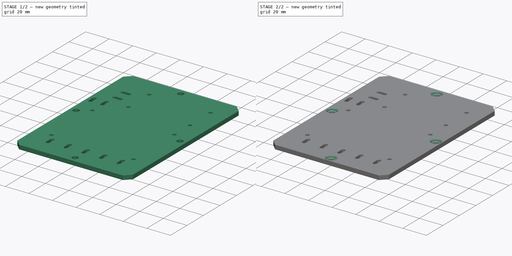
[diagram: build sequence overview — one tinted view per stage of 2, left to right]
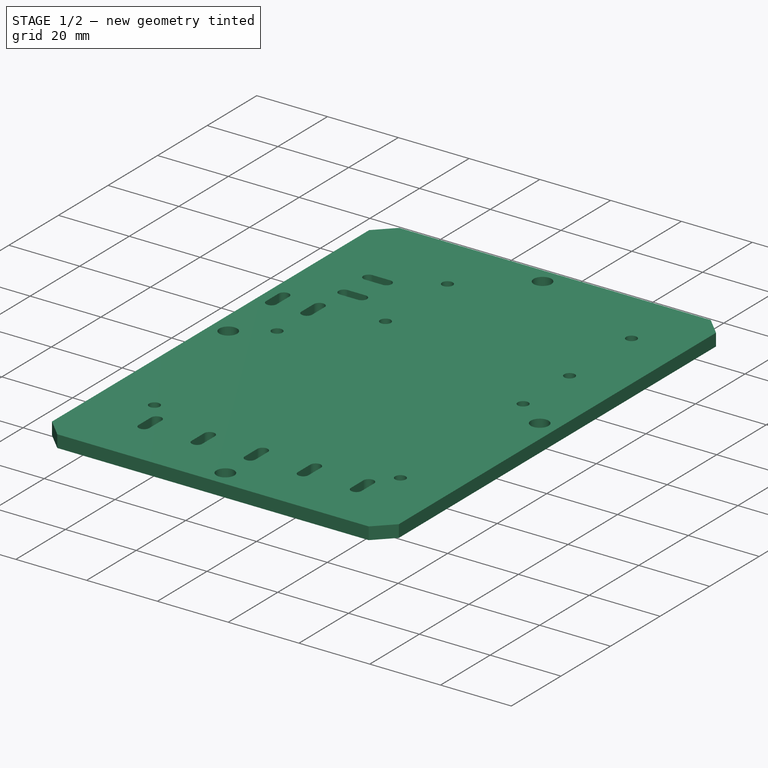
[diagram: stage 1 of 2 — iso view after this stage's code; geometry added in this stage tinted green]
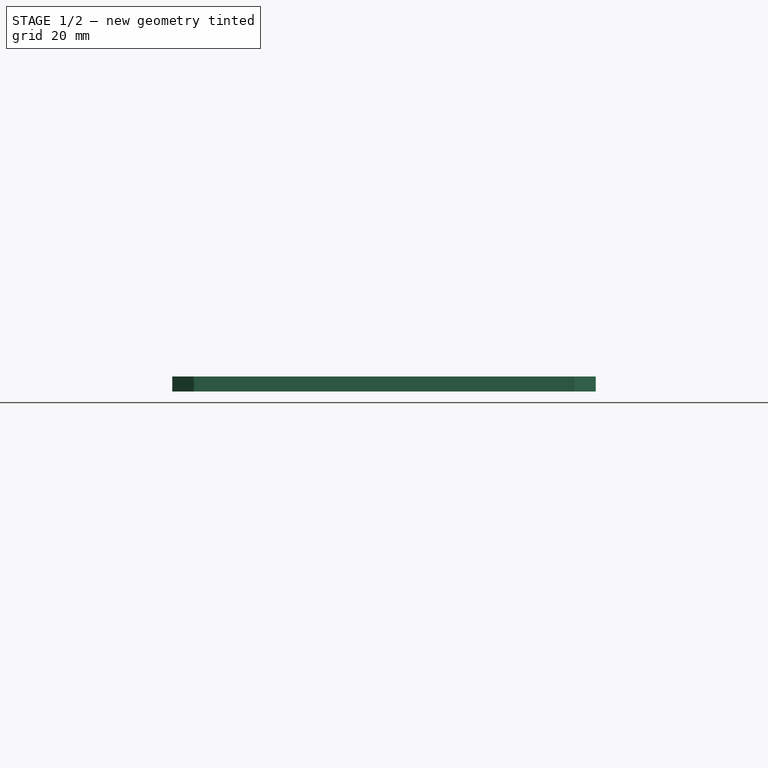
[diagram: stage 1 of 2 — front view after this stage's code; geometry added in this stage tinted green]
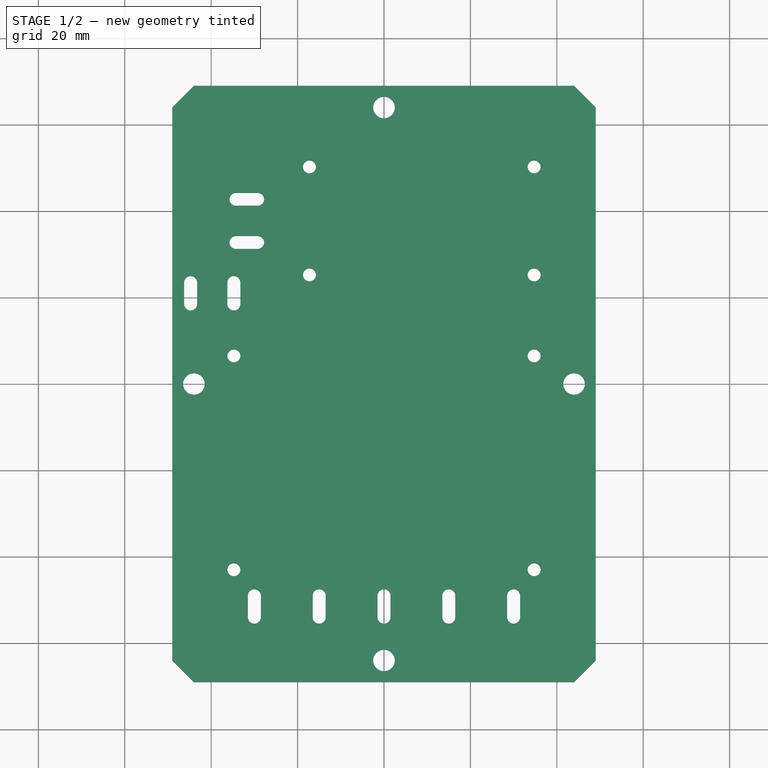
[diagram: stage 1 of 2 — top view after this stage's code; geometry added in this stage tinted green]
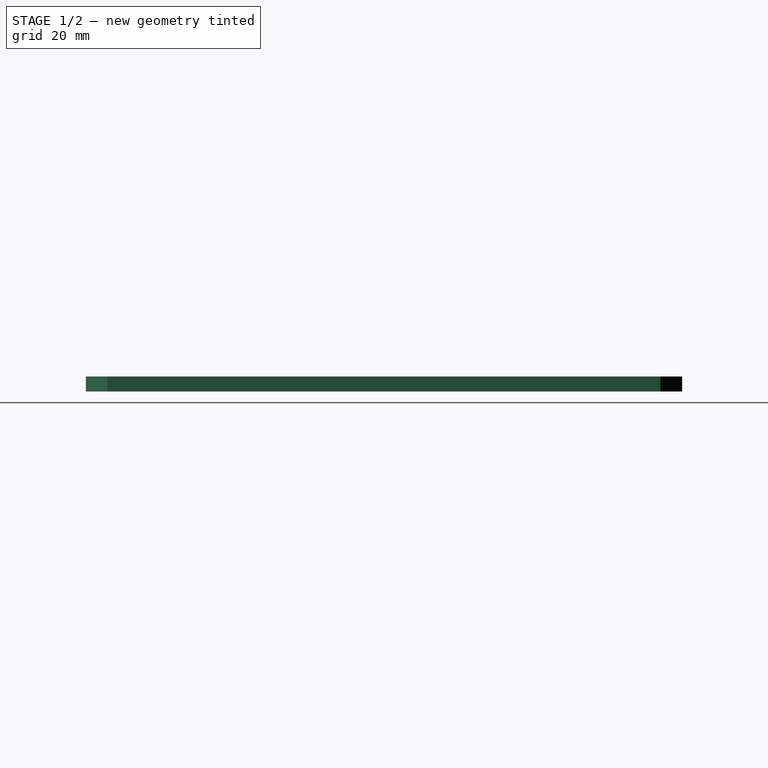
[diagram: stage 1 of 2 — right view after this stage's code; geometry added in this stage tinted green]
FCSTD DOCUMENT  (FreeCAD 0.21R33771 (Git))
Label: T160-ESP-4Relais
License: All rights reserved
LicenseURL: https://en.wikipedia.org/wiki/All_rights_reserved
objects: Sketcher::SketchObject×1, PartDesign::Pad×1, PartDesign::Chamfer×1, PartDesign::Body×1
note: 6 computed .brp shape members not serialized (recipe doc carries the construction recipe); baked Part::Feature solids carry a one-line shape summary decoded from their .brp

FEATURE [Sketcher::SketchObject] Sketch
  FullyConstrained = true
  MapMode = 5
  Support = -> [XY_Plane]
  sketch-geometry (88):
    g0: LineSegment StartX=-34.75 StartY=6.5 StartZ=0 EndX=34.75 EndY=6.5 EndZ=0
    g1: LineSegment StartX=34.75 StartY=6.5 StartZ=0 EndX=34.75 EndY=-43 EndZ=0
    g2: LineSegment StartX=34.75 StartY=-43 StartZ=0 EndX=-34.75 EndY=-43 EndZ=0
    g3: LineSegment StartX=-34.75 StartY=-43 StartZ=0 EndX=-34.75 EndY=6.5 EndZ=0
    g4: LineSegment StartX=-17.25 StartY=50.25 StartZ=0 EndX=34.75 EndY=50.25 EndZ=0
    g5: LineSegment StartX=34.75 StartY=25.25 StartZ=0 EndX=-17.25 EndY=25.25 EndZ=0
    g6: Circle CenterX=-17.25 CenterY=50.25 CenterZ=0 NormalX=0 NormalY=0 NormalZ=1 AngleXU=0 Radius=1.5
    g7: Circle CenterX=34.75 CenterY=50.25 CenterZ=0 NormalX=0 NormalY=0 NormalZ=1 AngleXU=0 Radius=1.5
    g8: Circle CenterX=34.75 CenterY=25.25 CenterZ=0 NormalX=0 NormalY=0 NormalZ=1 AngleXU=0 Radius=1.5
    g9: Circle CenterX=-17.25 CenterY=25.25 CenterZ=0 NormalX=0 NormalY=0 NormalZ=1 AngleXU=0 Radius=1.5
    g10: Circle CenterX=-34.75 CenterY=-43 CenterZ=0 NormalX=0 NormalY=0 NormalZ=1 AngleXU=0 Radius=1.5
    g11: Circle CenterX=-34.75 CenterY=6.5 CenterZ=0 NormalX=0 NormalY=0 NormalZ=1 AngleXU=0 Radius=1.5
    g12: Circle CenterX=34.75 CenterY=6.5 CenterZ=0 NormalX=0 NormalY=0 NormalZ=1 AngleXU=0 Radius=1.5
    g13: Circle CenterX=34.75 CenterY=-43 CenterZ=0 NormalX=0 NormalY=0 NormalZ=1 AngleXU=0 Radius=1.5
    g14: LineSegment StartX=-44 StartY=-64 StartZ=0 EndX=0 EndY=-64 EndZ=0
    g15: LineSegment StartX=0 StartY=-64 StartZ=0 EndX=44 EndY=-64 EndZ=0
    g16: LineSegment StartX=44 StartY=-64 StartZ=0 EndX=44 EndY=0 EndZ=0
    g17: LineSegment StartX=44 StartY=-1.3e-15 StartZ=0 EndX=44 EndY=64 EndZ=0
    g18: LineSegment StartX=44 StartY=64 StartZ=0 EndX=0 EndY=64 EndZ=0
    g19: LineSegment StartX=-1.5e-15 StartY=64 StartZ=0 EndX=-44 EndY=64 EndZ=0
    g20: LineSegment StartX=-44 StartY=64 StartZ=0 EndX=-44 EndY=0 EndZ=0
    g21: LineSegment StartX=-44 StartY=0 StartZ=0 EndX=-44 EndY=-64 EndZ=0
    g22: Circle CenterX=-44 CenterY=0 CenterZ=0 NormalX=0 NormalY=0 NormalZ=1 AngleXU=0 Radius=2.5
    g23: Circle CenterX=-1.5e-15 CenterY=64 CenterZ=0 NormalX=0 NormalY=0 NormalZ=1 AngleXU=0 Radius=2.5
    g24: Circle CenterX=44 CenterY=-1.3e-15 CenterZ=0 NormalX=0 NormalY=0 NormalZ=1 AngleXU=0 Radius=2.5
    g25: Circle CenterX=0 CenterY=-64 CenterZ=0 NormalX=0 NormalY=0 NormalZ=1 AngleXU=0 Radius=2.5
    g26: LineSegment StartX=-44 StartY=69 StartZ=0 EndX=44 EndY=69 EndZ=0
    g27: LineSegment StartX=49 StartY=64 StartZ=0 EndX=49 EndY=-64 EndZ=0
    g28: LineSegment StartX=44 StartY=-69 StartZ=0 EndX=-44 EndY=-69 EndZ=0
    g29: LineSegment StartX=-49 StartY=-64 StartZ=0 EndX=-49 EndY=64 EndZ=0
    g30: ArcOfCircle CenterX=-30 CenterY=-49 CenterZ=0 NormalX=0 NormalY=0 NormalZ=1 AngleXU=0 Radius=1.5 StartAngle=-1.8e-15 EndAngle=3.14159
    g31: ArcOfCircle CenterX=-30 CenterY=-54 CenterZ=0 NormalX=0 NormalY=0 NormalZ=1 AngleXU=0 Radius=1.5 StartAngle=3.14159 EndAngle=6.28319
    g32: LineSegment StartX=-31.5 StartY=-49 StartZ=0 EndX=-31.5 EndY=-54 EndZ=0
    g33: LineSegment StartX=-28.5 StartY=-54 StartZ=0 EndX=-28.5 EndY=-49 EndZ=0
    g34: ArcOfCircle CenterX=-15 CenterY=-49 CenterZ=0 NormalX=0 NormalY=0 NormalZ=1 AngleXU=0 Radius=1.5 StartAngle=-9e-16 EndAngle=3.14159
    g35: ArcOfCircle CenterX=-15 CenterY=-54 CenterZ=0 NormalX=0 NormalY=0 NormalZ=1 AngleXU=0 Radius=1.5 StartAngle=3.14159 EndAngle=6.28319
    g36: LineSegment StartX=-16.5 StartY=-49 StartZ=0 EndX=-16.5 EndY=-54 EndZ=0
    g37: LineSegment StartX=-13.5 StartY=-54 StartZ=0 EndX=-13.5 EndY=-49 EndZ=0
    g38: ArcOfCircle CenterX=0 CenterY=-49 CenterZ=0 NormalX=0 NormalY=0 NormalZ=1 AngleXU=0 Radius=1.5 StartAngle=1.1e-15 EndAngle=3.14159
    g39: ArcOfCircle CenterX=1e-16 CenterY=-54 CenterZ=0 NormalX=0 NormalY=0 NormalZ=1 AngleXU=0 Radius=1.5 StartAngle=3.14159 EndAngle=6.28319
    g40: LineSegment StartX=-1.5 StartY=-49 StartZ=0 EndX=-1.5 EndY=-54 EndZ=0
    g41: LineSegment StartX=1.5 StartY=-54 StartZ=0 EndX=1.5 EndY=-49 EndZ=0
    g42: ArcOfCircle CenterX=15 CenterY=-49 CenterZ=0 NormalX=0 NormalY=0 NormalZ=1 AngleXU=0 Radius=1.5 StartAngle=-9e-16 EndAngle=3.14159
    g43: ArcOfCircle CenterX=15 CenterY=-54 CenterZ=0 NormalX=0 NormalY=0 NormalZ=1 AngleXU=0 Radius=1.5 StartAngle=3.14159 EndAngle=6.28319
    g44: LineSegment StartX=13.5 StartY=-49 StartZ=0 EndX=13.5 EndY=-54 EndZ=0
    g45: LineSegment StartX=16.5 StartY=-54 StartZ=0 EndX=16.5 EndY=-49 EndZ=0
    g46: ArcOfCircle CenterX=30 CenterY=-49 CenterZ=0 NormalX=0 NormalY=0 NormalZ=1 AngleXU=0 Radius=1.5 StartAngle=0 EndAngle=3.14159
    g47: ArcOfCircle CenterX=30 CenterY=-54 CenterZ=0 NormalX=0 NormalY=0 NormalZ=1 AngleXU=0 Radius=1.5 StartAngle=3.14159 EndAngle=6.28319
    g48: LineSegment StartX=28.5 StartY=-49 StartZ=0 EndX=28.5 EndY=-54 EndZ=0
    g49: LineSegment StartX=31.5 StartY=-54 StartZ=0 EndX=31.5 EndY=-49 EndZ=0
    g50: LineSegment StartX=30 StartY=-54 StartZ=0 EndX=22.5 EndY=-54 EndZ=0
    g51: LineSegment StartX=22.5 StartY=-54 StartZ=0 EndX=15 EndY=-54 EndZ=0
    g52: LineSegment StartX=15 StartY=-54 StartZ=0 EndX=7.5 EndY=-54 EndZ=0
    g53: LineSegment StartX=7.5 StartY=-54 StartZ=0 EndX=0 EndY=-54 EndZ=0
    g54: LineSegment StartX=1e-16 StartY=-54 StartZ=0 EndX=-7.5 EndY=-54 EndZ=0
    g55: LineSegment StartX=-7.5 StartY=-54 StartZ=0 EndX=-15 EndY=-54 EndZ=0
    g56: LineSegment StartX=-15 StartY=-54 StartZ=0 EndX=-22.5 EndY=-54 EndZ=0
    g57: LineSegment StartX=-22.5 StartY=-54 StartZ=0 EndX=-30 EndY=-54 EndZ=0
    g58: LineSegment StartX=0 StartY=-43 StartZ=0 EndX=0 EndY=-49 EndZ=0
    g59: ArcOfCircle CenterX=-34.25 CenterY=42.75 CenterZ=0 NormalX=0 NormalY=0 NormalZ=1 AngleXU=0 Radius=1.5 StartAngle=1.5708 EndAngle=4.71239
    g60: ArcOfCircle CenterX=-29.25 CenterY=42.75 CenterZ=0 NormalX=0 NormalY=0 NormalZ=1 AngleXU=0 Radius=1.5 StartAngle=4.71239 EndAngle=7.85398
    g61: LineSegment StartX=-34.25 StartY=41.25 StartZ=0 EndX=-29.25 EndY=41.25 EndZ=0
    g62: LineSegment StartX=-29.25 StartY=44.25 StartZ=0 EndX=-34.25 EndY=44.25 EndZ=0
    g63: ArcOfCircle CenterX=-34.25 CenterY=32.75 CenterZ=0 NormalX=0 NormalY=0 NormalZ=1 AngleXU=0 Radius=1.5 StartAngle=1.5708 EndAngle=4.71239
    g64: ArcOfCircle CenterX=-29.25 CenterY=32.75 CenterZ=0 NormalX=0 NormalY=0 NormalZ=1 AngleXU=0 Radius=1.5 StartAngle=4.71239 EndAngle=7.85398
    g65: LineSegment StartX=-34.25 StartY=31.25 StartZ=0 EndX=-29.25 EndY=31.25 EndZ=0
    g66: LineSegment StartX=-29.25 StartY=34.25 StartZ=0 EndX=-34.25 EndY=34.25 EndZ=0
    g67: LineSegment StartX=-29.25 StartY=42.75 StartZ=0 EndX=-29.25 EndY=37.75 EndZ=0
    g68: LineSegment StartX=-29.25 StartY=32.75 StartZ=0 EndX=-29.25 EndY=37.75 EndZ=0
    g69: LineSegment StartX=-17.25 StartY=50.25 StartZ=0 EndX=-17.25 EndY=37.75 EndZ=0
    g70: LineSegment StartX=-17.25 StartY=25.25 StartZ=0 EndX=-17.25 EndY=37.75 EndZ=0
    g71: LineSegment StartX=-29.25 StartY=37.75 StartZ=0 EndX=-17.25 EndY=37.75 EndZ=0
    g72: LineSegment StartX=34.75 StartY=50.25 StartZ=0 EndX=34.75 EndY=37.75 EndZ=0
    g73: LineSegment StartX=34.75 StartY=25.25 StartZ=0 EndX=34.75 EndY=37.75 EndZ=0
    g74: GeomPoint X=34.75 Y=69 Z=0
    g75: ArcOfCircle CenterX=-44.75 CenterY=23.5 CenterZ=0 NormalX=0 NormalY=0 NormalZ=1 AngleXU=0 Radius=1.5 StartAngle=4e-16 EndAngle=3.14159
    g76: ArcOfCircle CenterX=-44.75 CenterY=18.5 CenterZ=0 NormalX=0 NormalY=0 NormalZ=1 AngleXU=0 Radius=1.5 StartAngle=3.14159 EndAngle=6.28319
    g77: LineSegment StartX=-46.25 StartY=23.5 StartZ=0 EndX=-46.25 EndY=18.5 EndZ=0
    g78: LineSegment StartX=-43.25 StartY=18.5 StartZ=0 EndX=-43.25 EndY=23.5 EndZ=0
    g79: ArcOfCircle CenterX=-34.75 CenterY=23.5 CenterZ=0 NormalX=0 NormalY=0 NormalZ=1 AngleXU=0 Radius=1.5 StartAngle=0 EndAngle=3.14159
    g80: ArcOfCircle CenterX=-34.75 CenterY=18.5 CenterZ=0 NormalX=0 NormalY=0 NormalZ=1 AngleXU=0 Radius=1.5 StartAngle=3.14159 EndAngle=6.28319
    g81: LineSegment StartX=-36.25 StartY=23.5 StartZ=0 EndX=-36.25 EndY=18.5 EndZ=0
    g82: LineSegment StartX=-33.25 StartY=18.5 StartZ=0 EndX=-33.25 EndY=23.5 EndZ=0
    g83: LineSegment StartX=-44.75 StartY=18.5 StartZ=0 EndX=-34.75 EndY=18.5 EndZ=0
    g84: LineSegment StartX=-49 StartY=-64 StartZ=0 EndX=-44 EndY=-69 EndZ=0
    g85: LineSegment StartX=44 StartY=-69 StartZ=0 EndX=49 EndY=-64 EndZ=0
    g86: LineSegment StartX=49 StartY=64 StartZ=0 EndX=44 EndY=69 EndZ=0
    g87: LineSegment StartX=-44 StartY=69 StartZ=0 EndX=-49 EndY=64 EndZ=0
  constraints (223):
    c: Coincident(g0,g1)
    c: Coincident(g1,g2)
    c: Coincident(g2,g3)
    c: Coincident(g3,g0)
    c: Horizontal(g0)
    c: Vertical(g1)
    c: Vertical(g3)
    c: DistanceX(g2,g2) = 69.5
    c: DistanceY(g3,g3) = 49.5
    c: Horizontal(g4)
    c: Horizontal(g5)
    c: DistanceX(g5,g5) = 52
    c: DistanceY(g5,g4) = 25
    c: Coincident(g7,g4)
    c: Coincident(g9,g5)
    c: Coincident(g10,g2)
    c: Coincident(g11,g0)
    c: Coincident(g12,g0)
    c: Coincident(g13,g1)
    c: Equal(g13,g12)
    c: Equal(g12,g10)
    c: Equal(g10,g11)
    c: Equal(g11,g8)
    c: Equal(g8,g7)
    c: Equal(g7,g6)
    c: Equal(g6,g9)
    c: Diameter(g6) = 3
    c: Coincident(g4,g6)
    c: Horizontal(g14)
    c: Coincident(g15,g14)
    c: Horizontal(g15)
    c: Coincident(g15,g16)
    c: Vertical(g16)
    c: Coincident(g16,g17)
    c: Vertical(g17)
    c: Coincident(g17,g18)
    c: Horizontal(g18)
    c: Coincident(g18,g19)
    c: Horizontal(g19)
    c: Coincident(g19,g20)
    c: Vertical(g20)
    c: Coincident(g20,g21)
    c: Coincident(g21,g14)
    c: Vertical(g21)
    c: Equal(g20,g21)
    c: Equal(g21,g16)
    c: Equal(g14,g19)
    c: Equal(g19,g18)
    c: Symmetric(g19,g15,g-1)
    c: DistanceX(g14,g15) = 88
    c: DistanceY(g14,g19) = 128
    c: Coincident(g22,g20)
    c: Coincident(g23,g18)
    c: Coincident(g24,g16)
    c: Coincident(g25,g14)
    c: Equal(g25,g24)
    c: Equal(g24,g23)
    c: Equal(g23,g22)
    c: Diameter(g22) = 5
    c: Horizontal(g26)
    c: Horizontal(g28)
    c: Vertical(g27)
    c: Vertical(g29)
    c: Symmetric(g10,g13,g-2)
    c: Tangent(g30,g32) = -1.5708
    c: Tangent(g32,g31) = -1.5708
    c: Tangent(g31,g33) = -1.5708
    c: Tangent(g33,g30) = -1.5708
    c: Equal(g30,g31)
    c: Vertical(g32)
    c: Tangent(g34,g36) = -1.5708
    c: Tangent(g36,g35) = -1.5708
    c: Tangent(g35,g37) = -1.5708
    c: Tangent(g37,g34) = -1.5708
    c: Equal(g34,g35)
    c: Vertical(g36)
    c: Tangent(g38,g40) = -1.5708
    c: Tangent(g40,g39) = -1.5708
    c: Tangent(g39,g41) = -1.5708
    c: Tangent(g41,g38) = -1.5708
    c: Equal(g38,g39)
    c: Vertical(g40)
    c: Tangent(g42,g44) = -1.5708
    c: Tangent(g44,g43) = -1.5708
    c: Tangent(g43,g45) = -1.5708
    c: Tangent(g45,g42) = -1.5708
    c: Equal(g42,g43)
    c: Vertical(g44)
    c: Tangent(g46,g48) = -1.5708
    c: Tangent(g48,g47) = -1.5708
    c: Tangent(g47,g49) = -1.5708
    c: Tangent(g49,g46) = -1.5708
    c: Equal(g46,g47)
    c: Vertical(g48)
    c: Equal(g30,g34)
    c: Equal(g34,g38)
    c: Equal(g38,g42)
    c: Equal(g42,g46)
    c: Equal(g32,g36)
    c: Equal(g36,g40)
    c: Equal(g40,g44)
    c: Equal(g44,g48)
    c: Diameter(g30) = 3
    c: DistanceY(g32,g32) = 5
    c: Coincident(g50,g47)
    c: Horizontal(g50)
    c: Coincident(g51,g50)
    c: Coincident(g51,g43)
    c: Coincident(g52,g43)
    c: Horizontal(g52)
    c: Coincident(g52,g53)
    c: Coincident(g53,g39)
    c: Horizontal(g53)
    c: Coincident(g53,g54)
    c: Horizontal(g54)
    c: Coincident(g54,g55)
    c: Coincident(g55,g35)
    c: Horizontal(g55)
    c: Coincident(g55,g56)
    c: Horizontal(g56)
    c: Coincident(g56,g57)
    c: Coincident(g57,g31)
    c: Horizontal(g57)
    c: Horizontal(g51)
    c: Equal(g50,g51)
    c: Equal(g51,g52)
    c: Equal(g52,g53)
    c: Equal(g53,g54)
    c: Equal(g54,g55)
    c: Equal(g55,g56)
    c: Equal(g56,g57)
    c: DistanceX(g56,g54) = 15
    c: DistanceY(g28,g31) = 15
    c: PointOnObject(g58,g2)
    c: Coincident(g58,g38)
    c: Vertical(g58)
    c: DistanceY(g58,g58) = 6
    c: PointOnObject(g58,g-2)
    c: Vertical(g8,g12)
    c: Tangent(g59,g61) = -1.5708
    c: Tangent(g61,g60) = -1.5708
    c: Tangent(g60,g62) = -1.5708
    c: Tangent(g62,g59) = -1.5708
    c: Equal(g59,g60)
    c: Horizontal(g61)
    c: Tangent(g63,g65) = -1.5708
    c: Tangent(g65,g64) = -1.5708
    c: Tangent(g64,g66) = -1.5708
    c: Tangent(g66,g63) = -1.5708
    c: Equal(g63,g64)
    c: Horizontal(g65)
    c: Equal(g64,g60)
    c: Equal(g64,g30)
    c: Equal(g32,g62)
    c: Equal(g62,g66)
    c: Vertical(g64,g60)
    c: DistanceY(g63,g59) = 10
    c: Coincident(g67,g60)
    c: Vertical(g67)
    c: Coincident(g68,g64)
    c: Coincident(g68,g67)
    c: Coincident(g69,g6)
    c: Vertical(g69)
    c: Coincident(g70,g9)
    c: Coincident(g70,g69)
    c: Vertical(g70)
    c: Equal(g70,g69)
    c: Equal(g68,g67)
    c: Coincident(g71,g67)
    c: Coincident(g71,g69)
    c: Horizontal(g71)
    c: DistanceX(g71,g71) = 12
    c: Coincident(g72,g7)
    c: Vertical(g72)
    c: Coincident(g73,g8)
    c: Coincident(g73,g72)
    c: Vertical(g73)
    c: Equal(g73,g72)
    c: PointOnObject(g74,g26)
    c: Symmetric(g74,g12,g72)
    c: Coincident(g8,g5)
    c: Tangent(g75,g77) = -1.5708
    c: Tangent(g77,g76) = -1.5708
    c: Tangent(g76,g78) = -1.5708
    c: Tangent(g78,g75) = -1.5708
    c: Equal(g75,g76)
    c: Vertical(g77)
    c: Tangent(g79,g81) = -1.5708
    c: Tangent(g81,g80) = -1.5708
    c: Tangent(g80,g82) = -1.5708
    c: Tangent(g82,g79) = -1.5708
    c: Equal(g79,g80)
    c: Vertical(g81)
    c: Equal(g80,g76)
    c: Equal(g81,g77)
    c: Horizontal(g76,g80)
    c: Coincident(g83,g76)
    c: Coincident(g83,g80)
    c: Equal(g63,g79)
    c: Equal(g62,g82)
    c: DistanceX(g83,g83) = 10
    c: Vertical(g80,g11)
    c: DistanceY(g11,g80) = 12
    c: Coincident(g84,g29)
    c: Coincident(g84,g28)
    c: Coincident(g85,g28)
    c: Coincident(g85,g27)
    c: Coincident(g86,g27)
    c: Coincident(g86,g26)
    c: Coincident(g87,g26)
    c: Coincident(g87,g29)
    c: Angle(g29,g87) = 2.35619
    c: Angle(g86,g27) = 2.35619
    c: Angle(g85,g28) = 2.35619
    c: Angle(g28,g84) = 2.35619
    c: DistanceX(g29,g19) = 5
    c: Horizontal(g29,g19)
    c: Vertical(g26,g19)
    c: Equal(g87,g86)
    c: Equal(g86,g85)
    c: Equal(g85,g84)
    c: Vertical(g28,g15)
    c: Horizontal(g15,g27)
FEATURE [PartDesign::Pad] Pad
  Direction = (0,0,1)
  Length = 3.5
  Length2 = 10
  Profile = -> Sketch
  ReferenceAxis = -> Sketch [N_Axis]
  Type = 0
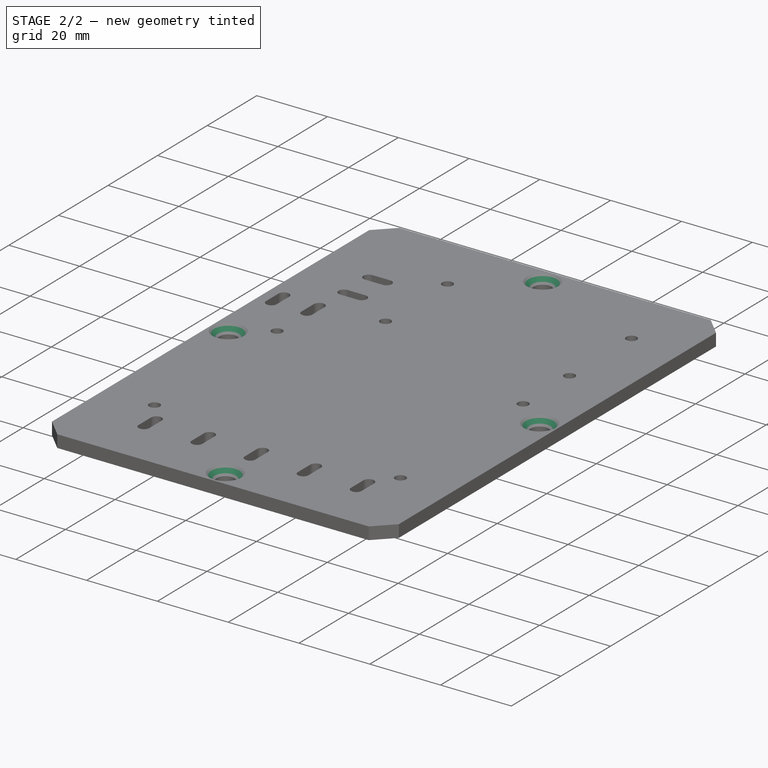
[diagram: stage 2 of 2 — iso view after this stage's code; geometry added in this stage tinted green]
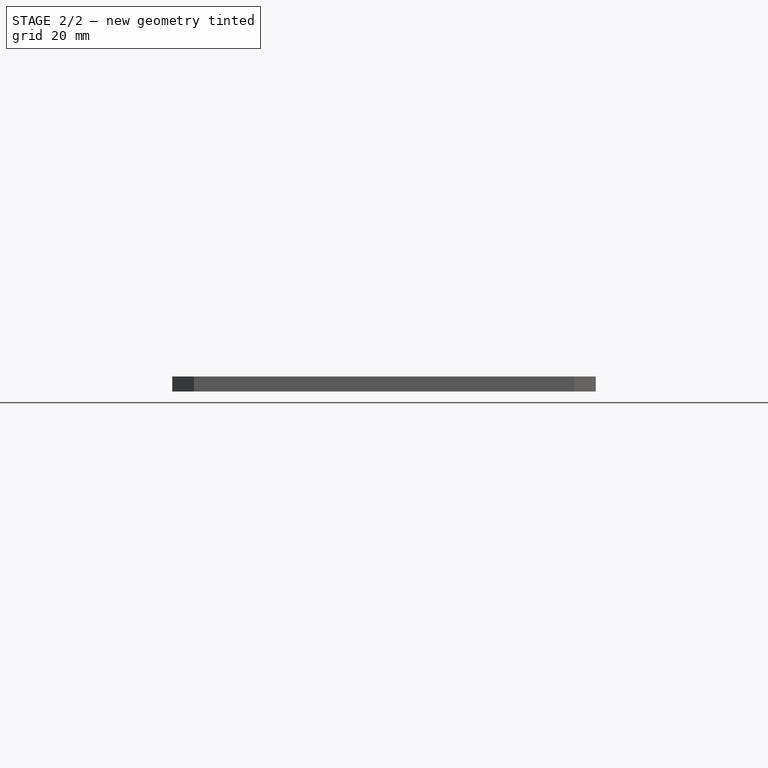
[diagram: stage 2 of 2 — front view after this stage's code; geometry added in this stage tinted green]
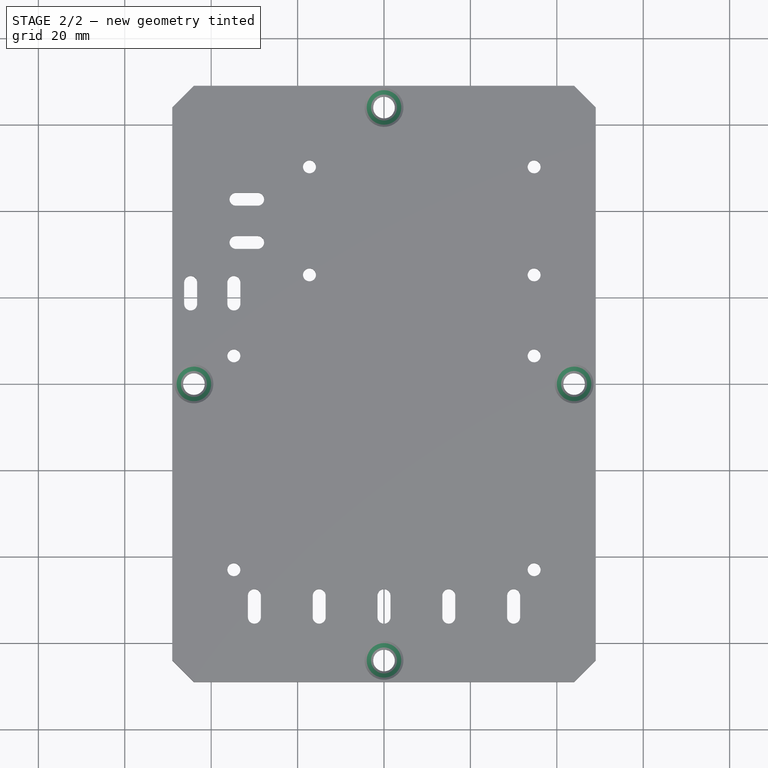
[diagram: stage 2 of 2 — top view after this stage's code; geometry added in this stage tinted green]
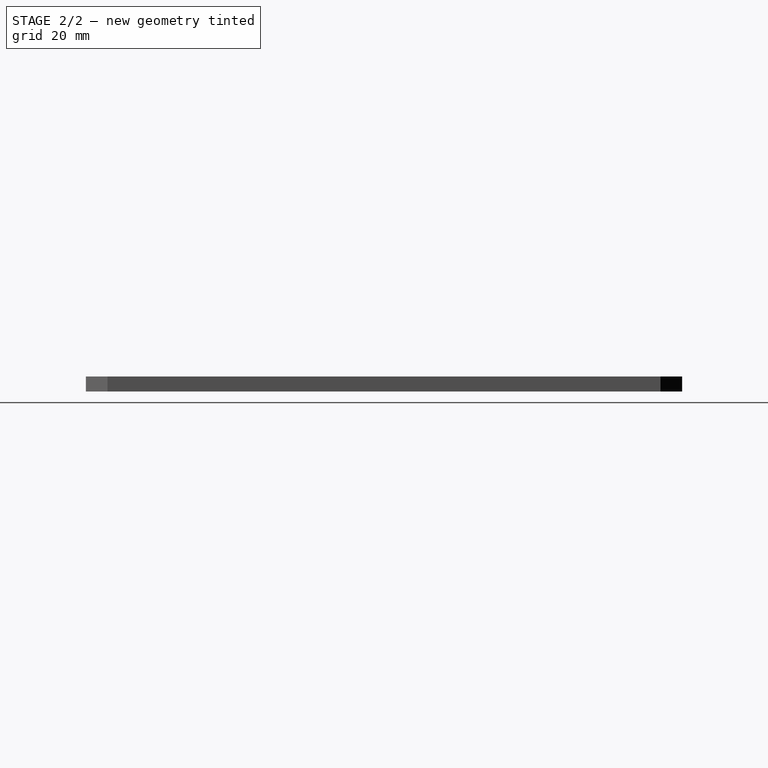
[diagram: stage 2 of 2 — right view after this stage's code; geometry added in this stage tinted green]
FEATURE [PartDesign::Chamfer] Chamfer
  Angle = 45
  Base = -> Pad [Edge135,Edge141,Edge138,Edge144]
  BaseFeature = -> Pad
  ChamferType = 0
  FlipDirection = false
  Size = 2
  Size2 = 1
  SupportTransform = false
  UseAllEdges = false
FEATURE [PartDesign::Body] Body  label="Körper"
  Group = -> [Sketch,Pad,Chamfer]
  Origin = -> Origin
  Tip = -> Chamfer
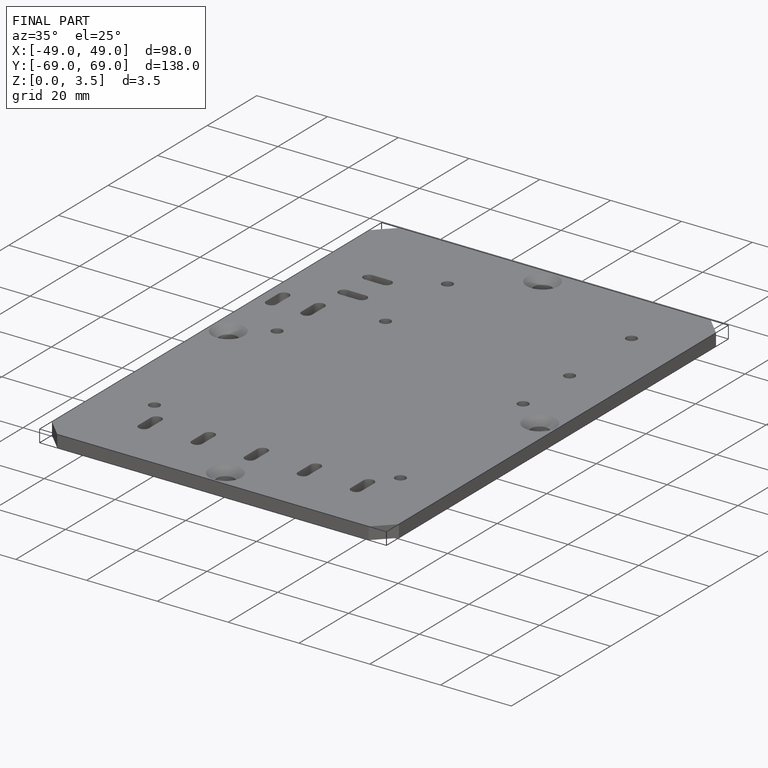
[diagram: finished part — iso view with bounding-box wireframe]
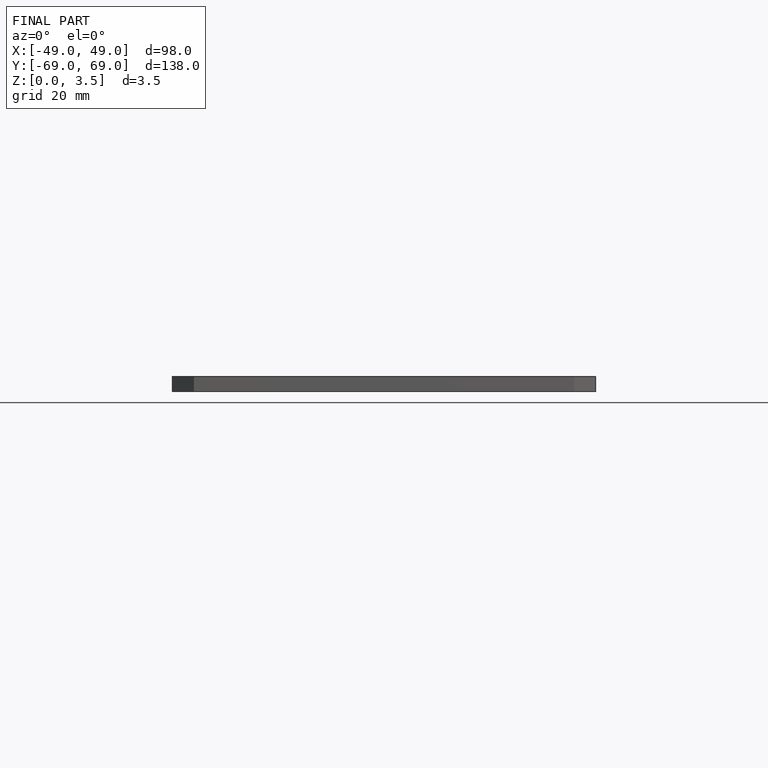
[diagram: finished part — front view with bounding-box wireframe]
